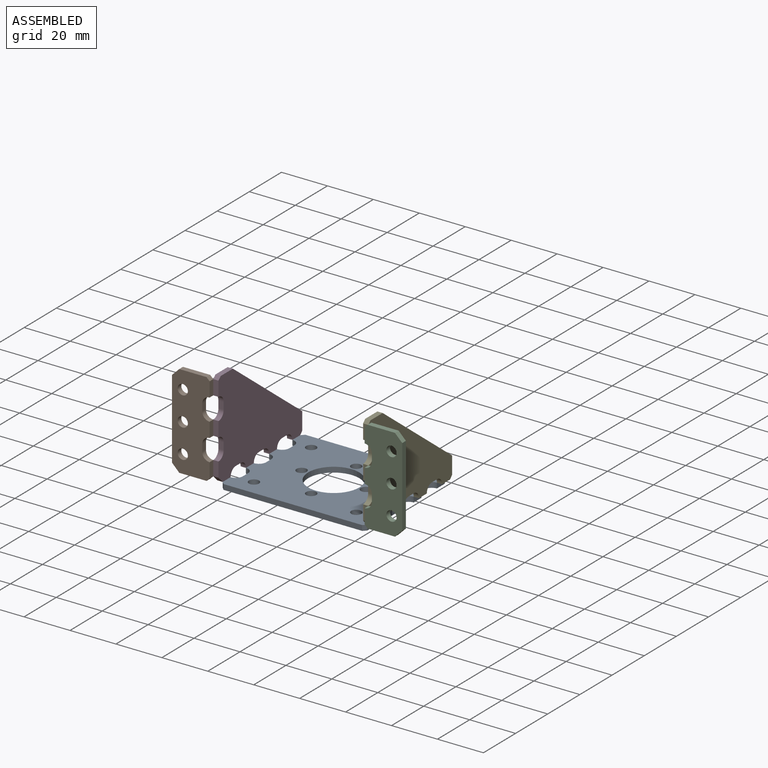
[diagram: assembled view]
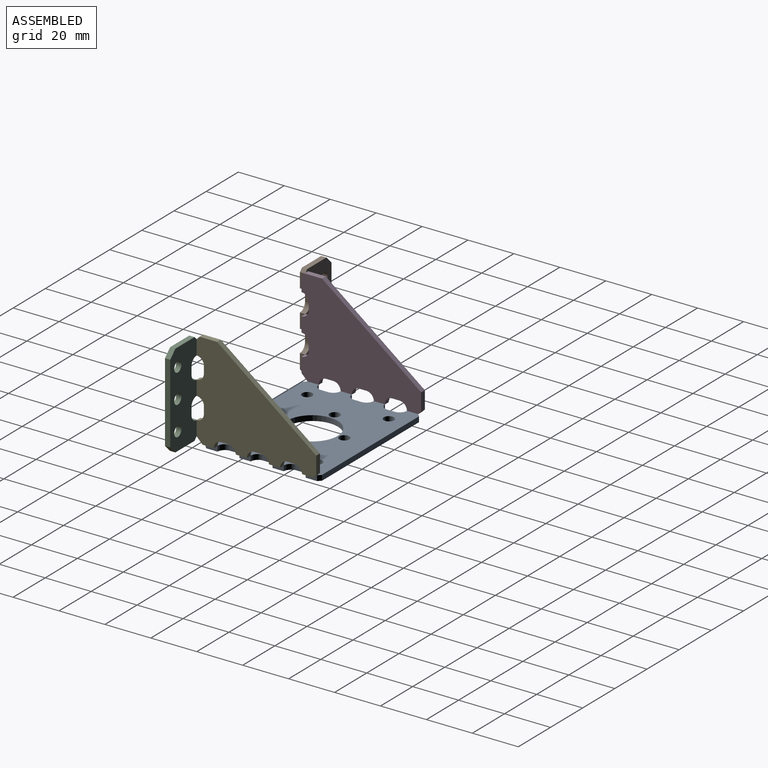
[diagram: assembled view, second angle]
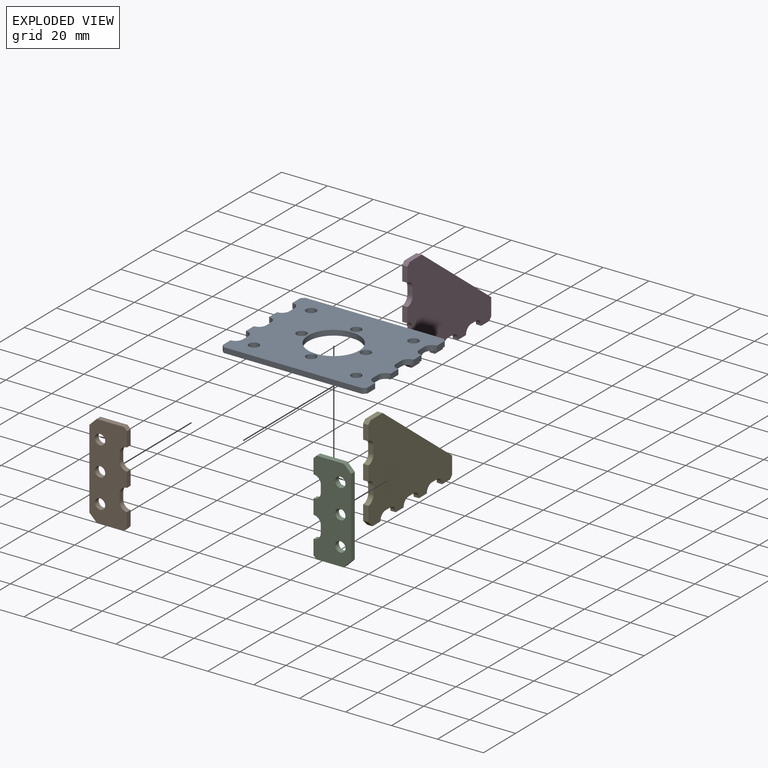
[diagram: exploded view]
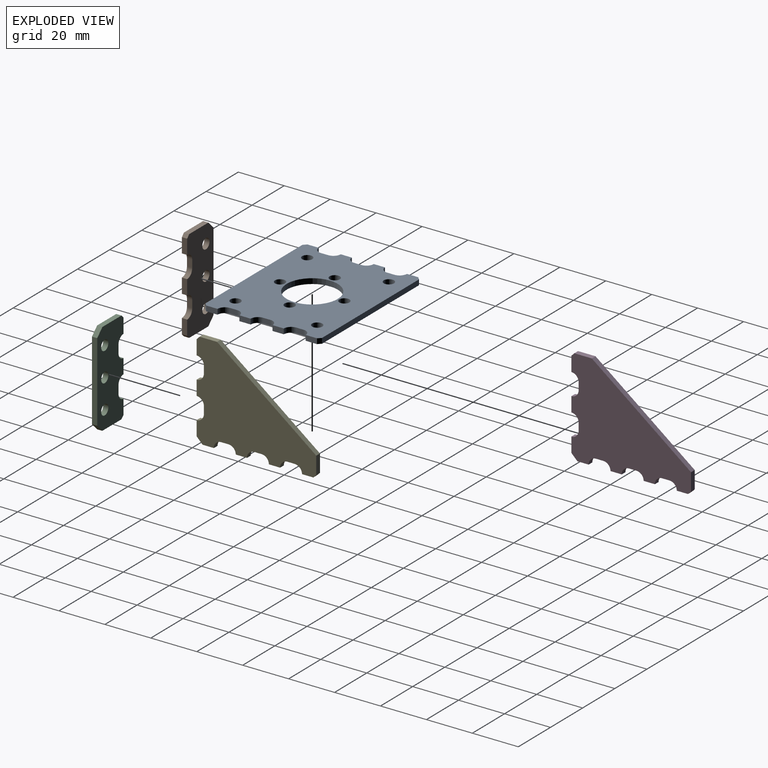
[diagram: exploded view, second angle]
ASSEMBLY  parts=5 mates=4
PART A: 43 faces, bbox 62.9x50.8x2.3 mm
  f0: cylinder r=3.17mm len=3.18mm, axis (0,0,-1), area 11.4mm2, adj f1,f40,f41,f42
  f1: plane 4.9x2.29mm, normal (1,0,0), area 11.2mm2, adj f0,f2,f41,f42
  f2: plane 2.29x1.31mm, normal (0.71,0.71,0), area 4.2mm2, adj f1,f3,f41,f42
  f3: plane 60.33x2.29mm, normal (0,1,0), area 137.9mm2, adj f2,f4,f41,f42
  f4: plane 2.29x1.31mm, normal (-0.71,0.71,0), area 4.2mm2, adj f3,f5,f41,f42
  f5: plane 4.9x2.29mm, normal (-1,0,0), area 11.2mm2, adj f4,f6,f41,f42
  f6: cylinder r=3.17mm len=3.18mm, axis (0,0,-1), area 11.4mm2, adj f5,f7,f41,f42
  f7: plane 3.18x2.29mm, normal (-1,0,0), area 7.3mm2, adj f6,f8,f41,f42
  f8: cylinder r=3.17mm len=3.18mm, axis (0,0,-1), area 11.4mm2, adj f7,f9,f41,f42
  f9: plane 4.9x2.29mm, normal (-1,0,0), area 11.2mm2, adj f8,f10,f41,f42
  f10: cylinder r=3.17mm len=3.18mm, axis (0,0,-1), area 11.4mm2, adj f9,f11,f41,f42
  f11: plane 3.18x2.29mm, normal (-1,0,0), area 7.3mm2, adj f10,f12,f41,f42
  f12: cylinder r=3.17mm len=3.18mm, axis (0,0,-1), area 11.4mm2, adj f11,f13,f41,f42
  f13: plane 4.9x2.29mm, normal (-1,0,0), area 11.2mm2, adj f12,f14,f41,f42
  f14: cylinder r=3.17mm len=3.18mm, axis (0,0,-1), area 11.4mm2, adj f13,f15,f41,f42
  f15: plane 3.18x2.29mm, normal (-1,0,0), area 7.3mm2, adj f14,f16,f41,f42
  f16: cylinder r=3.17mm len=3.18mm, axis (0,0,-1), area 11.4mm2, adj f15,f17,f41,f42
  f17: plane 4.9x2.29mm, normal (-1,0,0), area 11.2mm2, adj f16,f18,f41,f42
  f18: plane 2.29x1.31mm, normal (-0.71,-0.71,0), area 4.2mm2, adj f17,f19,f41,f42
  f19: plane 60.33x2.29mm, normal (0,-1,0), area 137.9mm2, adj f18,f20,f41,f42
  f20: plane 2.29x1.31mm, normal (0.71,-0.71,0), area 4.2mm2, adj f19,f21,f41,f42
  f21: plane 4.9x2.29mm, normal (1,0,0), area 11.2mm2, adj f20,f22,f41,f42
  f22: cylinder r=3.17mm len=3.18mm, axis (0,0,-1), area 11.4mm2, adj f21,f23,f41,f42
  f23: plane 3.18x2.29mm, normal (1,0,0), area 7.3mm2, adj f22,f24,f41,f42
  f24: cylinder r=3.17mm len=3.18mm, axis (0,0,-1), area 11.4mm2, adj f23,f25,f41,f42
  f25: plane 4.9x2.29mm, normal (1,0,0), area 11.2mm2, adj f24,f26,f41,f42
  f26: cylinder r=3.17mm len=3.18mm, axis (0,0,-1), area 11.4mm2, adj f25,f27,f41,f42
  f27: plane 3.18x2.29mm, normal (1,0,0), area 7.3mm2, adj f26,f28,f41,f42
  f28: cylinder r=3.17mm len=3.18mm, axis (0,0,-1), area 11.4mm2, adj f27,f29,f41,f42
  f29: plane 4.9x2.29mm, normal (1,0,0), area 11.2mm2, adj f28,f30,f41,f42
  f30: cylinder r=3.17mm len=3.18mm, axis (0,0,-1), area 11.4mm2, adj f29,f40,f41,f42
  f31: cylinder r=2.22mm len=4.45mm, axis (0,0,-1), area 31.9mm2, adj f41,f42
  f32: cylinder r=2.22mm len=4.45mm, axis (0,0,-1), area 31.9mm2, adj f41,f42
  f33: cylinder r=2.22mm len=4.45mm, axis (0,0,-1), area 31.9mm2, adj f41,f42
  f34: cylinder r=2.22mm len=4.45mm, axis (0,0,-1), area 31.9mm2, adj f41,f42
  f35: cylinder r=11.11mm len=22.23mm, axis (0,0,-1), area 159.6mm2, adj f41,f42
  f36: cylinder r=2.22mm len=4.45mm, axis (0,0,-1), area 31.9mm2, adj f41,f42
  f37: cylinder r=2.22mm len=4.45mm, axis (0,0,-1), area 31.9mm2, adj f41,f42
  f38: cylinder r=2.22mm len=4.45mm, axis (0,0,-1), area 31.9mm2, adj f41,f42
  f39: cylinder r=2.22mm len=4.45mm, axis (0,0,-1), area 31.9mm2, adj f41,f42
  f40: plane 3.18x2.29mm, normal (1,0,0), area 7.3mm2, adj f0,f30,f41,f42
  f41: plane 62.94x50.8mm, normal (0,0,1), area 2526.4mm2, adj f0,f1,f2,f3,f4,f5,f6,f7
  f42: plane 62.94x50.8mm, normal (0,0,-1), area 2526.4mm2, adj f0,f1,f2,f3,f4,f5,f6,f7
PART B: 21 faces, bbox 40.8x16.4x2.3 mm
  f0: plane 6.39x2.29mm, normal (0,1,0), area 14.6mm2, adj f1,f17,f19,f20
  f1: cylinder r=3.17mm len=3.18mm, axis (0,0,-1), area 11.4mm2, adj f0,f2,f19,f20
  f2: plane 3.18x2.29mm, normal (0,1,0), area 7.3mm2, adj f1,f3,f19,f20
  f3: cylinder r=3.17mm len=3.18mm, axis (0,0,-1), area 11.4mm2, adj f2,f4,f19,f20
  f4: plane 6.39x2.29mm, normal (0,1,0), area 14.6mm2, adj f3,f5,f19,f20
  f5: cylinder r=3.17mm len=3.18mm, axis (0,0,-1), area 11.4mm2, adj f4,f6,f19,f20
  f6: plane 3.18x2.29mm, normal (0,1,0), area 7.3mm2, adj f5,f7,f19,f20
  f7: cylinder r=3.17mm len=3.18mm, axis (0,0,-1), area 11.4mm2, adj f6,f8,f19,f20
  f8: plane 6.39x2.29mm, normal (0,1,0), area 14.6mm2, adj f7,f9,f19,f20
  f9: plane 2.29x1.31mm, normal (-0.71,0.71,0), area 4.2mm2, adj f8,f10,f19,f20
  f10: plane 11.89x2.29mm, normal (-1,0,0), area 27.2mm2, adj f9,f11,f19,f20
  f11: plane 3.18x3.18mm, normal (-0.71,-0.71,0), area 10.3mm2, adj f10,f12,f19,f20
  f12: plane 34.49x2.29mm, normal (0,-1,0), area 78.9mm2, adj f11,f13,f19,f20
  f13: plane 3.18x3.18mm, normal (0.71,-0.71,0), area 10.3mm2, adj f12,f14,f19,f20
  f14: plane 11.89x2.29mm, normal (1,0,0), area 27.2mm2, adj f13,f17,f19,f20
  f15: cylinder r=2.22mm len=4.45mm, axis (0,0,-1), area 31.9mm2, adj f19,f20
  f16: cylinder r=2.22mm len=4.45mm, axis (0,0,-1), area 31.9mm2, adj f19,f20
  f17: plane 2.29x1.31mm, normal (0.71,0.71,0), area 4.2mm2, adj f0,f14,f19,f20
  f18: cylinder r=2.22mm len=4.45mm, axis (0,0,-1), area 31.9mm2, adj f19,f20
  f19: plane 40.84x16.37mm, normal (0,0,1), area 558.4mm2, adj f0,f1,f2,f3,f4,f5,f6,f7
  f20: plane 40.84x16.37mm, normal (0,0,-1), area 558.4mm2, adj f0,f1,f2,f3,f4,f5,f6,f7
PART C: 21 faces, bbox 40.8x16.4x2.3 mm
  f0: plane 6.39x2.29mm, normal (0,1,0), area 14.6mm2, adj f1,f17,f19,f20
  f1: cylinder r=3.17mm len=3.18mm, axis (0,0,-1), area 11.4mm2, adj f0,f2,f19,f20
  f2: plane 3.18x2.29mm, normal (0,1,0), area 7.3mm2, adj f1,f3,f19,f20
  f3: cylinder r=3.17mm len=3.18mm, axis (0,0,-1), area 11.4mm2, adj f2,f4,f19,f20
  f4: plane 6.39x2.29mm, normal (0,1,0), area 14.6mm2, adj f3,f5,f19,f20
  f5: cylinder r=3.17mm len=3.18mm, axis (0,0,-1), area 11.4mm2, adj f4,f6,f19,f20
  f6: plane 3.18x2.29mm, normal (0,1,0), area 7.3mm2, adj f5,f7,f19,f20
  f7: cylinder r=3.17mm len=3.18mm, axis (0,0,-1), area 11.4mm2, adj f6,f8,f19,f20
  f8: plane 6.39x2.29mm, normal (0,1,0), area 14.6mm2, adj f7,f9,f19,f20
  f9: plane 2.29x1.31mm, normal (-0.71,0.71,0), area 4.2mm2, adj f8,f10,f19,f20
  f10: plane 11.89x2.29mm, normal (-1,0,0), area 27.2mm2, adj f9,f11,f19,f20
  f11: plane 3.18x3.18mm, normal (-0.71,-0.71,0), area 10.3mm2, adj f10,f12,f19,f20
  f12: plane 34.49x2.29mm, normal (0,-1,0), area 78.9mm2, adj f11,f13,f19,f20
  f13: plane 3.18x3.18mm, normal (0.71,-0.71,0), area 10.3mm2, adj f12,f14,f19,f20
  f14: plane 11.89x2.29mm, normal (1,0,0), area 27.2mm2, adj f13,f17,f19,f20
  f15: cylinder r=2.22mm len=4.45mm, axis (0,0,-1), area 31.9mm2, adj f19,f20
  f16: cylinder r=2.22mm len=4.45mm, axis (0,0,-1), area 31.9mm2, adj f19,f20
  f17: plane 2.29x1.31mm, normal (0.71,0.71,0), area 4.2mm2, adj f0,f14,f19,f20
  f18: cylinder r=2.22mm len=4.45mm, axis (0,0,-1), area 31.9mm2, adj f19,f20
  f19: plane 40.84x16.37mm, normal (0,0,1), area 558.4mm2, adj f0,f1,f2,f3,f4,f5,f6,f7
  f20: plane 40.84x16.37mm, normal (0,0,-1), area 558.4mm2, adj f0,f1,f2,f3,f4,f5,f6,f7
PART D: 30 faces, bbox 42.2x52.1x2.3 mm
  f0: plane 4.9x2.29mm, normal (1,0,0), area 11.2mm2, adj f1,f27,f28,f29
  f1: cylinder r=3.17mm len=3.18mm, axis (0,0,-1), area 11.4mm2, adj f0,f2,f28,f29
  f2: plane 3.18x2.29mm, normal (1,0,0), area 7.3mm2, adj f1,f3,f28,f29
  f3: cylinder r=3.17mm len=3.18mm, axis (0,0,-1), area 11.4mm2, adj f2,f4,f28,f29
  f4: plane 4.9x2.29mm, normal (1,0,0), area 11.2mm2, adj f3,f5,f28,f29
  f5: cylinder r=3.17mm len=3.18mm, axis (0,0,-1), area 11.4mm2, adj f4,f6,f28,f29
  f6: plane 3.18x2.29mm, normal (1,0,0), area 7.3mm2, adj f5,f7,f28,f29
  f7: cylinder r=3.17mm len=3.18mm, axis (0,0,-1), area 11.4mm2, adj f6,f8,f28,f29
  f8: plane 4.9x2.29mm, normal (1,0,0), area 11.2mm2, adj f7,f9,f28,f29
  f9: cylinder r=3.17mm len=3.18mm, axis (0,0,-1), area 11.4mm2, adj f8,f10,f28,f29
  f10: plane 3.18x2.29mm, normal (1,0,0), area 7.3mm2, adj f9,f11,f28,f29
  f11: cylinder r=3.17mm len=3.18mm, axis (0,0,-1), area 11.4mm2, adj f10,f12,f28,f29
  f12: plane 4.9x2.29mm, normal (1,0,0), area 11.2mm2, adj f11,f13,f28,f29
  f13: plane 2.29x1.31mm, normal (0.71,0.71,0), area 4.2mm2, adj f12,f14,f28,f29
  f14: plane 7.62x2.29mm, normal (0,1,0), area 17.4mm2, adj f13,f15,f28,f29
  f15: plane 43.18x33.22mm, normal (-0.79,0.61,0), area 124.5mm2, adj f14,f16,f28,f29
  f16: plane 7.62x2.29mm, normal (-1,0,0), area 17.4mm2, adj f15,f17,f28,f29
  f17: plane 2.29x1.31mm, normal (-0.71,-0.71,0), area 4.2mm2, adj f16,f18,f28,f29
  f18: plane 6.39x2.29mm, normal (0,-1,0), area 14.6mm2, adj f17,f19,f28,f29
  f19: cylinder r=3.17mm len=3.18mm, axis (0,0,-1), area 11.4mm2, adj f18,f20,f28,f29
  f20: plane 3.18x2.29mm, normal (0,-1,0), area 7.3mm2, adj f19,f21,f28,f29
  f21: cylinder r=3.17mm len=3.18mm, axis (0,0,-1), area 11.4mm2, adj f20,f22,f28,f29
  f22: plane 6.39x2.29mm, normal (0,-1,0), area 14.6mm2, adj f21,f23,f28,f29
  f23: cylinder r=3.17mm len=3.18mm, axis (0,0,-1), area 11.4mm2, adj f22,f24,f28,f29
  f24: plane 3.18x2.29mm, normal (0,-1,0), area 7.3mm2, adj f23,f25,f28,f29
  f25: cylinder r=3.17mm len=3.18mm, axis (0,0,-1), area 11.4mm2, adj f24,f26,f28,f29
  f26: plane 6.39x2.29mm, normal (0,-1,0), area 14.6mm2, adj f25,f27,f28,f29
  f27: plane 2.62x2.62mm, normal (0.71,-0.71,0), area 8.5mm2, adj f0,f26,f28,f29
  f28: plane 52.11x42.15mm, normal (0,0,1), area 1344.4mm2, adj f0,f1,f2,f3,f4,f5,f6,f7
  f29: plane 52.11x42.15mm, normal (0,0,-1), area 1344.4mm2, adj f0,f1,f2,f3,f4,f5,f6,f7
PART E: 30 faces, bbox 42.2x52.1x2.3 mm
  f0: plane 4.9x2.29mm, normal (-1,0,0), area 11.2mm2, adj f1,f27,f28,f29
  f1: cylinder r=3.17mm len=3.18mm, axis (0,0,-1), area 11.4mm2, adj f0,f2,f28,f29
  f2: plane 3.18x2.29mm, normal (-1,0,0), area 7.3mm2, adj f1,f3,f28,f29
  f3: cylinder r=3.17mm len=3.18mm, axis (0,0,-1), area 11.4mm2, adj f2,f4,f28,f29
  f4: plane 4.9x2.29mm, normal (-1,0,0), area 11.2mm2, adj f3,f5,f28,f29
  f5: cylinder r=3.17mm len=3.18mm, axis (0,0,-1), area 11.4mm2, adj f4,f6,f28,f29
  f6: plane 3.18x2.29mm, normal (-1,0,0), area 7.3mm2, adj f5,f7,f28,f29
  f7: cylinder r=3.17mm len=3.18mm, axis (0,0,-1), area 11.4mm2, adj f6,f8,f28,f29
  f8: plane 4.9x2.29mm, normal (-1,0,0), area 11.2mm2, adj f7,f9,f28,f29
  f9: cylinder r=3.17mm len=3.18mm, axis (0,0,-1), area 11.4mm2, adj f8,f10,f28,f29
  f10: plane 3.18x2.29mm, normal (-1,0,0), area 7.3mm2, adj f9,f11,f28,f29
  f11: cylinder r=3.17mm len=3.18mm, axis (0,0,-1), area 11.4mm2, adj f10,f12,f28,f29
  f12: plane 4.9x2.29mm, normal (-1,0,0), area 11.2mm2, adj f11,f13,f28,f29
  f13: plane 2.62x2.62mm, normal (-0.71,-0.71,0), area 8.5mm2, adj f12,f14,f28,f29
  f14: plane 6.39x2.29mm, normal (0,-1,0), area 14.6mm2, adj f13,f15,f28,f29
  f15: cylinder r=3.17mm len=3.18mm, axis (0,0,-1), area 11.4mm2, adj f14,f16,f28,f29
  f16: plane 3.18x2.29mm, normal (0,-1,0), area 7.3mm2, adj f15,f17,f28,f29
  f17: cylinder r=3.17mm len=3.18mm, axis (0,0,-1), area 11.4mm2, adj f16,f18,f28,f29
  f18: plane 6.39x2.29mm, normal (0,-1,0), area 14.6mm2, adj f17,f19,f28,f29
  f19: cylinder r=3.17mm len=3.18mm, axis (0,0,-1), area 11.4mm2, adj f18,f20,f28,f29
  f20: plane 3.18x2.29mm, normal (0,-1,0), area 7.3mm2, adj f19,f21,f28,f29
  f21: cylinder r=3.17mm len=3.18mm, axis (0,0,-1), area 11.4mm2, adj f20,f22,f28,f29
  f22: plane 6.39x2.29mm, normal (0,-1,0), area 14.6mm2, adj f21,f23,f28,f29
  f23: plane 2.29x1.31mm, normal (0.71,-0.71,0), area 4.2mm2, adj f22,f24,f28,f29
  f24: plane 7.62x2.29mm, normal (1,0,0), area 17.4mm2, adj f23,f25,f28,f29
  f25: plane 43.18x33.22mm, normal (0.79,0.61,0), area 124.5mm2, adj f24,f26,f28,f29
  f26: plane 7.62x2.29mm, normal (0,1,0), area 17.4mm2, adj f25,f27,f28,f29
  f27: plane 2.29x1.31mm, normal (-0.71,0.71,0), area 4.2mm2, adj f0,f26,f28,f29
  f28: plane 52.11x42.15mm, normal (0,0,1), area 1344.4mm2, adj f0,f1,f2,f3,f4,f5,f6,f7
  f29: plane 52.11x42.15mm, normal (0,0,-1), area 1344.4mm2, adj f0,f1,f2,f3,f4,f5,f6,f7
PLACE A t=(-10.72,10.75,-9.17)mm
PLACE B rot(axis=(-0.58,-0.58,-0.58),120deg) t=(-17.77,-22.82,72.62)mm
PLACE C rot(axis=(-0.58,0.58,0.58),120deg) t=(-3.67,-22.82,72.62)mm
PLACE D rot(axis=(0,1,0),90deg) t=(-46.76,10.75,-33.78)mm
PLACE E rot(axis=(0,-1,0),90deg) t=(25.33,10.75,-33.78)mm
MATE planar D.f18 <-> B.f19  axis (0,-1,0) through (-44.47,-15.96,35.34)mm
MATE planar A.f41 <-> D.f0  axis (0,0,1) through (-42.19,-10.89,-2.31)mm
MATE planar A.f41 <-> E.f12  axis (0,0,1) through (20.75,-10.89,-2.31)mm
MATE planar E.f22 <-> C.f19  axis (0,-1,0) through (23.04,-15.96,35.34)mm
